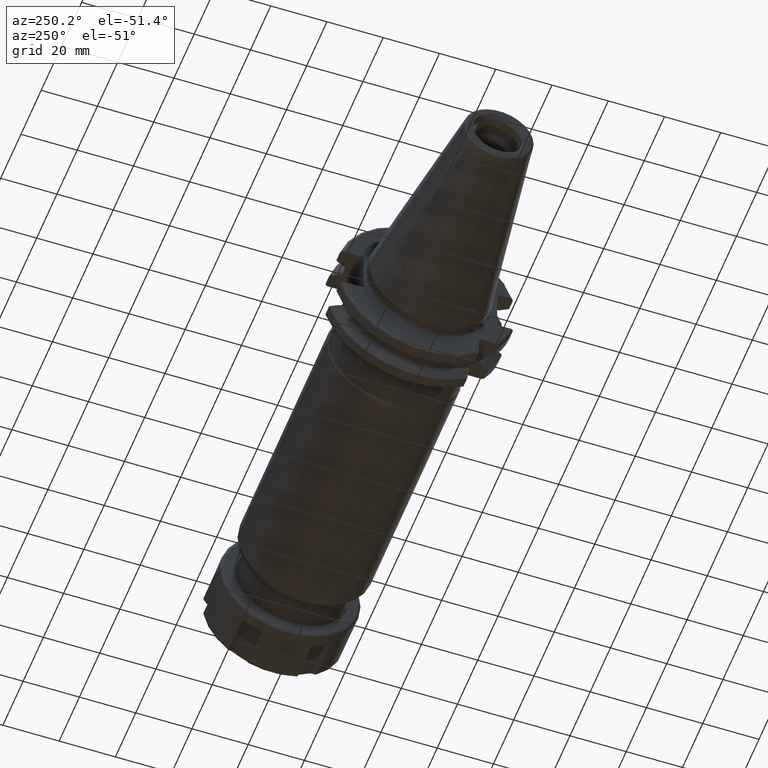
[diagram: clean part render]
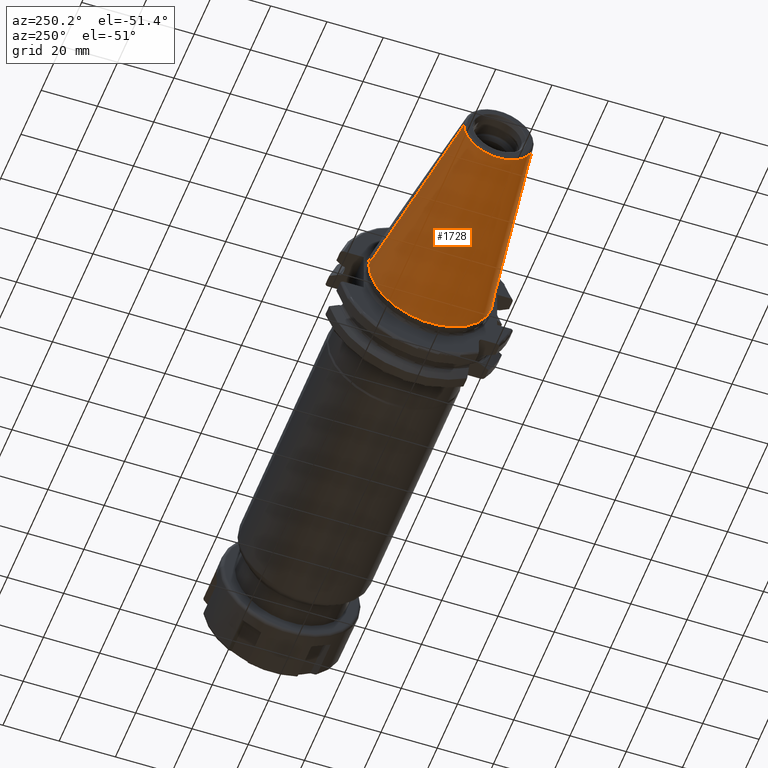
[diagram: same view with one face highlighted and labeled with its STEP entity id]
A machine part, auxiliary view. The second image highlights one B-rep face of the part: STEP entity #1728.
In plain terms, the highlighted conical surface has half-angle 8.298 deg.
Its self-contained STEP definition (entity closure, byte-faithful):
#32=CARTESIAN_POINT('',(-6.743710273571E1,0.E0,0.E0));
#33=DIRECTION('',(-1.E0,0.E0,0.E0));
#34=DIRECTION('',(0.E0,1.E0,0.E0));
#35=AXIS2_PLACEMENT_3D('',#32,#33,#34);
#47=DIRECTION('',(-9.895312636440E-1,-1.443186691705E-1,0.E0));
#48=VECTOR('',#47,6.765568998391E1);
#49=CARTESIAN_POINT('',(-4.896823332305E-1,2.215358204157E1,0.E0));
#50=LINE('',#49,#48);
#51=DIRECTION('',(-9.895312636440E-1,1.443186691705E-1,0.E0));
#52=VECTOR('',#51,6.765568998391E1);
#53=CARTESIAN_POINT('',(-4.896823332305E-1,-2.215358204157E1,0.E0));
#54=LINE('',#53,#52);
#55=CARTESIAN_POINT('',(-4.896823332305E-1,0.E0,0.E0));
#56=DIRECTION('',(-1.E0,0.E0,0.E0));
#57=DIRECTION('',(0.E0,1.E0,0.E0));
#58=AXIS2_PLACEMENT_3D('',#55,#56,#57);
#1365=CARTESIAN_POINT('',(-6.743710273571E1,1.238960290128E1,0.E0));
#1367=VERTEX_POINT('',#1365);
#1369=CARTESIAN_POINT('',(-6.743710273571E1,-1.238960290128E1,0.E0));
#1371=VERTEX_POINT('',#1369);
#1433=CARTESIAN_POINT('',(-4.896823332305E-1,2.215358204157E1,0.E0));
#1434=VERTEX_POINT('',#1433);
#1435=CARTESIAN_POINT('',(-4.896823332305E-1,-2.215358204157E1,0.E0));
#1436=VERTEX_POINT('',#1435);
#1716=CARTESIAN_POINT('',(-3.396339253447E1,0.E0,0.E0));
#1717=DIRECTION('',(1.E0,0.E0,0.E0));
#1718=DIRECTION('',(0.E0,-1.E0,0.E0));
#1719=AXIS2_PLACEMENT_3D('',#1716,#1717,#1718);
#1720=CONICAL_SURFACE('',#1719,1.727159247143E1,8.297826828206E0);
#1721=ORIENTED_EDGE('',*,*,#1706,.T.);
#1722=ORIENTED_EDGE('',*,*,#1683,.T.);
#1723=ORIENTED_EDGE('',*,*,#1710,.F.);
#1725=ORIENTED_EDGE('',*,*,#1724,.F.);
#1726=EDGE_LOOP('',(#1721,#1722,#1723,#1725));
#1727=FACE_OUTER_BOUND('',#1726,.F.);
#1728=ADVANCED_FACE('',(#1727),#1720,.T.);
#36=CIRCLE('',#35,1.238960290128E1);
#59=CIRCLE('',#58,2.215358204157E1);
#1683=EDGE_CURVE('',#1367,#1371,#36,.T.);
#1706=EDGE_CURVE('',#1434,#1367,#50,.T.);
#1710=EDGE_CURVE('',#1436,#1371,#54,.T.);
#1724=EDGE_CURVE('',#1434,#1436,#59,.T.);